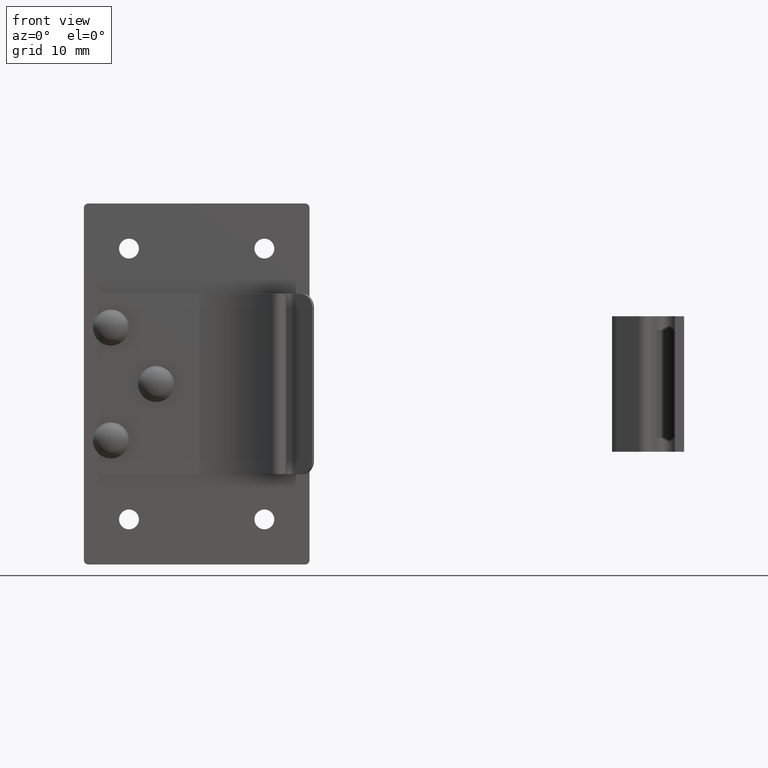
[diagram: clean part render]
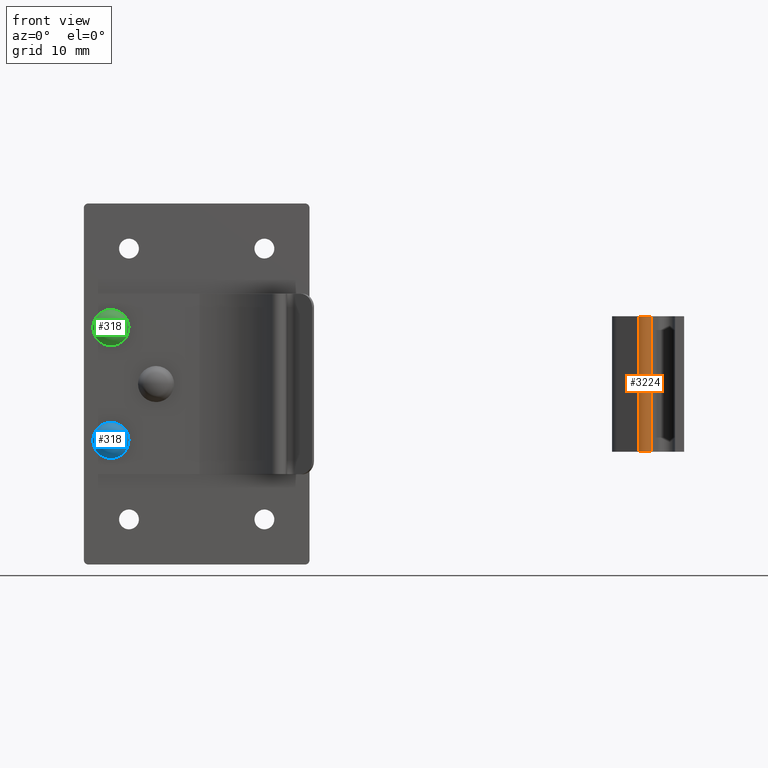
[diagram: same view with three faces highlighted in distinct colors, each labeled with its STEP entity id]
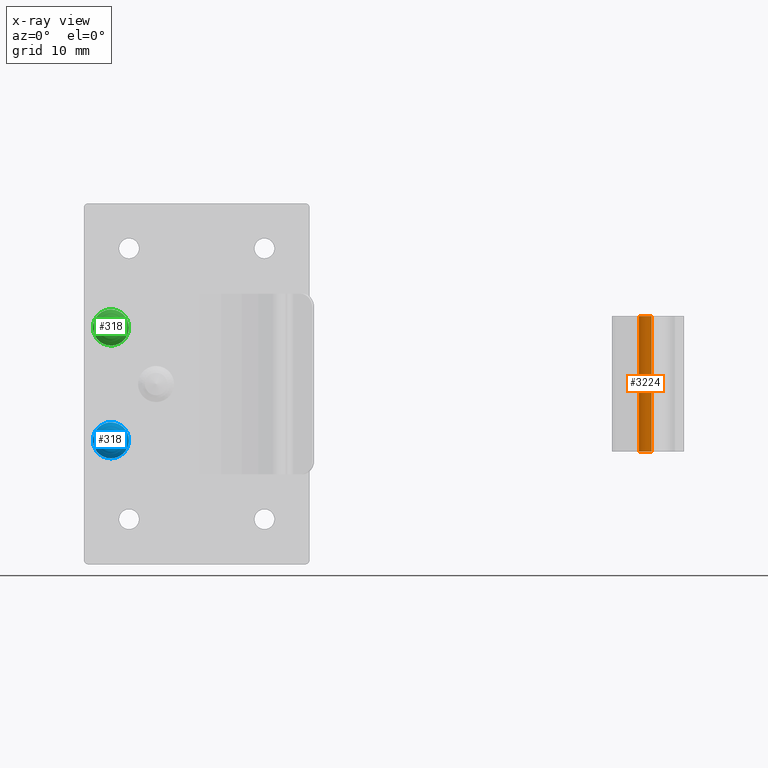
[diagram: x-ray of the same camera — body ghosted, the three highlighted faces saturated]
A machine part, front view with three faces highlighted in distinct colors.
The next image is the same camera in x-ray (body ghosted, the three faces saturated) — at least one of them is partly hidden behind the body in this view.
Their STEP definitions:

[orange] entity #3224 — the highlighted face is a freeform B-spline surface patch.
#2617=CARTESIAN_POINT('',(60.027406454846691,-5.014510366707651,7.500000000000170));
#2618=VERTEX_POINT('',#2617);
#2624=CARTESIAN_POINT('',(59.624202074853997,-3.609161000000085,7.500000000000170));
#2625=VERTEX_POINT('',#2624);
#2626=CARTESIAN_POINT('',(59.624202074853997,-3.609161000000085,7.500000000000170));
#2627=CARTESIAN_POINT('',(60.011300128724962,-3.806560703043738,7.500000000000170));
#2628=CARTESIAN_POINT('',(60.131133634316043,-4.224234591394641,7.500000000000170));
#2629=CARTESIAN_POINT('',(60.250967139907132,-4.641908479745542,7.500000000000170));
#2630=CARTESIAN_POINT('',(60.027406454846727,-5.014510366707670,7.500000000000170));
#2638=(BOUNDED_CURVE()B_SPLINE_CURVE(2,(#2626,#2627,#2628,#2629,#2630),.UNSPECIFIED.,.F.,.U.)B_SPLINE_CURVE_WITH_KNOTS((3,2,3),(0.0,0.500000000000000,1.0),.UNSPECIFIED.)CURVE()GEOMETRIC_REPRESENTATION_ITEM()RATIONAL_B_SPLINE_CURVE((1.0,0.917156593934854,1.0,0.917156593934854,1.0))REPRESENTATION_ITEM(''));
#2639=EDGE_CURVE('',#2625,#2618,#2638,.T.);
#2749=CARTESIAN_POINT('',(59.624202074853997,-3.609161000000085,-7.500000000000000));
#2750=VERTEX_POINT('',#2749);
#2756=CARTESIAN_POINT('',(60.027406454846691,-5.014510366707651,-7.500000000000000));
#2757=VERTEX_POINT('',#2756);
#2758=CARTESIAN_POINT('',(59.624202074853997,-3.609161000000085,-7.500000000000000));
#2759=CARTESIAN_POINT('',(60.011300128724962,-3.806560703043738,-7.500000000000000));
#2760=CARTESIAN_POINT('',(60.131133634316043,-4.224234591394641,-7.500000000000000));
#2761=CARTESIAN_POINT('',(60.250967139907132,-4.641908479745542,-7.500000000000000));
#2762=CARTESIAN_POINT('',(60.027406454846727,-5.014510366707670,-7.500000000000000));
#2770=(BOUNDED_CURVE()B_SPLINE_CURVE(2,(#2758,#2759,#2760,#2761,#2762),.UNSPECIFIED.,.F.,.U.)B_SPLINE_CURVE_WITH_KNOTS((3,2,3),(0.0,0.500000000000000,1.0),.UNSPECIFIED.)CURVE()GEOMETRIC_REPRESENTATION_ITEM()RATIONAL_B_SPLINE_CURVE((1.0,0.917156593934854,1.0,0.917156593934854,1.0))REPRESENTATION_ITEM(''));
#2771=EDGE_CURVE('',#2750,#2757,#2770,.T.);
#3192=CARTESIAN_POINT('',(60.027406454846691,-5.014510366707651,-7.500000000000000));
#3193=CARTESIAN_POINT('',(60.027406454846691,-5.014510366707651,7.500000000000170));
#3194=QUASI_UNIFORM_CURVE('',1,(#3192,#3193),.UNSPECIFIED.,.F.,.U.);
#3195=EDGE_CURVE('',#2757,#2618,#3194,.T.);
#3200=CARTESIAN_POINT('',(59.600726552620422,-3.597574373884221,-7.875000000000005));
#3201=CARTESIAN_POINT('',(59.600726552620422,-3.597574373884221,7.884375000000175));
#3202=CARTESIAN_POINT('',(60.638866161497809,-4.093168587744867,-7.875000000000006));
#3203=CARTESIAN_POINT('',(60.638866161497809,-4.093168587744867,7.884375000000175));
#3204=CARTESIAN_POINT('',(60.003613927861593,-5.052231709751140,-7.875000000000005));
#3205=CARTESIAN_POINT('',(60.003613927861593,-5.052231709751140,7.884375000000175));
#3213=(BOUNDED_SURFACE()B_SPLINE_SURFACE(1,2,((#3200,#3202,#3204),(#3201,#3203,#3205)),.UNSPECIFIED.,.F.,.F.,.U.)B_SPLINE_SURFACE_WITH_KNOTS((2,2),(3,3),(0.0,15.759375000000180),(0.0,1.0),.UNSPECIFIED.)GEOMETRIC_REPRESENTATION_ITEM()RATIONAL_B_SPLINE_SURFACE(((1.0,0.656059028990507,1.0),(1.0,0.656059028990507,1.0)))REPRESENTATION_ITEM('')SURFACE());
#3214=ORIENTED_EDGE('',*,*,#2639,.T.);
#3215=ORIENTED_EDGE('',*,*,#3195,.F.);
#3216=ORIENTED_EDGE('',*,*,#2771,.F.);
#3217=CARTESIAN_POINT('',(59.624202074853997,-3.609161000000085,-7.500000000000000));
#3218=CARTESIAN_POINT('',(59.624202074853997,-3.609161000000085,7.500000000000170));
#3219=QUASI_UNIFORM_CURVE('',1,(#3217,#3218),.UNSPECIFIED.,.F.,.U.);
#3220=EDGE_CURVE('',#2750,#2625,#3219,.T.);
#3221=ORIENTED_EDGE('',*,*,#3220,.T.);
#3222=EDGE_LOOP('',(#3214,#3215,#3216,#3221));
#3223=FACE_OUTER_BOUND('',#3222,.T.);
#3224=ADVANCED_FACE('',(#3223),#3213,.T.);

[blue] entity #318 — the highlighted face is a freeform B-spline surface patch.
#247=CARTESIAN_POINT('',(8.0,-1.200012000000100,1.999992733268745));
#248=VERTEX_POINT('',#247);
#249=CARTESIAN_POINT('',(8.0,-1.200012000000100,-1.999992733268745));
#250=VERTEX_POINT('',#249);
#251=CARTESIAN_POINT('',(8.0,-1.200012000000100,1.999992733268745));
#252=CARTESIAN_POINT('',(9.999992733268746,-1.200012000000100,1.999992733268744));
#253=CARTESIAN_POINT('',(9.999992733268746,-1.200012000000100,0.0));
#254=CARTESIAN_POINT('',(9.999992733268746,-1.200012000000100,-1.999992733268744));
#255=CARTESIAN_POINT('',(8.0,-1.200012000000100,-1.999992733268745));
#263=(BOUNDED_CURVE()B_SPLINE_CURVE(2,(#251,#252,#253,#254,#255),.UNSPECIFIED.,.F.,.U.)B_SPLINE_CURVE_WITH_KNOTS((3,2,3),(0.0,0.250000000000000,0.500000000000000),.UNSPECIFIED.)CURVE()GEOMETRIC_REPRESENTATION_ITEM()RATIONAL_B_SPLINE_CURVE((1.0,0.707106781186547,1.0,0.707106781186547,1.0))REPRESENTATION_ITEM(''));
#264=EDGE_CURVE('',#248,#250,#263,.T.);
#266=CARTESIAN_POINT('',(8.0,-1.200012000000100,-1.999992733268745));
#267=CARTESIAN_POINT('',(6.000007266731257,-1.200012000000100,-1.999992733268744));
#268=CARTESIAN_POINT('',(6.000007266731255,-1.200012000000100,0.0));
#269=CARTESIAN_POINT('',(6.000007266731257,-1.200012000000100,1.999992733268744));
#270=CARTESIAN_POINT('',(8.0,-1.200012000000100,1.999992733268745));
#278=(BOUNDED_CURVE()B_SPLINE_CURVE(2,(#266,#267,#268,#269,#270),.UNSPECIFIED.,.F.,.U.)B_SPLINE_CURVE_WITH_KNOTS((3,2,3),(0.500000000000000,0.750000000000000,1.0),.UNSPECIFIED.)CURVE()GEOMETRIC_REPRESENTATION_ITEM()RATIONAL_B_SPLINE_CURVE((1.0,0.707106781186547,1.0,0.707106781186547,1.0))REPRESENTATION_ITEM(''));
#279=EDGE_CURVE('',#250,#248,#278,.T.);
#290=CARTESIAN_POINT('',(6.402056604576426,-0.309209079740963,-1.597943395423572));
#291=CARTESIAN_POINT('',(6.961562974107903,-1.041281142857238,-2.076874051784199));
#292=CARTESIAN_POINT('',(9.038437025892099,-1.041281142857238,-2.076874051784199));
#293=CARTESIAN_POINT('',(9.597943395423574,-0.309209079740963,-1.597943395423572));
#294=CARTESIAN_POINT('',(5.923125948215803,-1.041281142857238,-1.038437025892100));
#295=CARTESIAN_POINT('',(6.517118233634124,-2.399997999999997,-1.482881766365876));
#296=CARTESIAN_POINT('',(9.482881766365876,-2.399997999999997,-1.482881766365876));
#297=CARTESIAN_POINT('',(10.076874051784202,-1.041281142857238,-1.038437025892100));
#298=CARTESIAN_POINT('',(5.923125948215803,-1.041281142857238,1.038437025892100));
#299=CARTESIAN_POINT('',(6.517118233634124,-2.399997999999997,1.482881766365876));
#300=CARTESIAN_POINT('',(9.482881766365876,-2.399997999999997,1.482881766365876));
#301=CARTESIAN_POINT('',(10.076874051784202,-1.041281142857238,1.038437025892100));
#302=CARTESIAN_POINT('',(6.402056604576426,-0.309209079740963,1.597943395423572));
#303=CARTESIAN_POINT('',(6.961562974107903,-1.041281142857238,2.076874051784199));
#304=CARTESIAN_POINT('',(9.038437025892099,-1.041281142857238,2.076874051784199));
#305=CARTESIAN_POINT('',(9.597943395423574,-0.309209079740963,1.597943395423572));
#313=(BOUNDED_SURFACE()B_SPLINE_SURFACE(2,2,((#290,#294,#298,#302),(#291,#295,#299,#303),(#292,#296,#300,#304),(#293,#297,#301,#305)),.UNSPECIFIED.,.F.,.F.,.U.)B_SPLINE_SURFACE_WITH_KNOTS((3,1,3),(3,1,3),(0.0,2.442974424246543,4.885948848493086),(0.0,2.442974424246541,4.885948848493083),.UNSPECIFIED.)GEOMETRIC_REPRESENTATION_ITEM()RATIONAL_B_SPLINE_SURFACE(((1.855987853653357,1.427993926826678,1.427993926826678,1.855987853653357),(1.427993926826678,1.0,1.0,1.427993926826678),(1.427993926826678,1.0,1.0,1.427993926826678),(1.855987853653357,1.427993926826678,1.427993926826678,1.855987853653357)))REPRESENTATION_ITEM('')SURFACE());
#314=ORIENTED_EDGE('',*,*,#279,.F.);
#315=ORIENTED_EDGE('',*,*,#264,.F.);
#316=EDGE_LOOP('',(#314,#315));
#317=FACE_OUTER_BOUND('',#316,.T.);
#318=ADVANCED_FACE('',(#317),#313,.T.);

[green] entity #318 — the highlighted face is a freeform B-spline surface patch.
#247=CARTESIAN_POINT('',(8.0,-1.200012000000100,1.999992733268745));
#248=VERTEX_POINT('',#247);
#249=CARTESIAN_POINT('',(8.0,-1.200012000000100,-1.999992733268745));
#250=VERTEX_POINT('',#249);
#251=CARTESIAN_POINT('',(8.0,-1.200012000000100,1.999992733268745));
#252=CARTESIAN_POINT('',(9.999992733268746,-1.200012000000100,1.999992733268744));
#253=CARTESIAN_POINT('',(9.999992733268746,-1.200012000000100,0.0));
#254=CARTESIAN_POINT('',(9.999992733268746,-1.200012000000100,-1.999992733268744));
#255=CARTESIAN_POINT('',(8.0,-1.200012000000100,-1.999992733268745));
#263=(BOUNDED_CURVE()B_SPLINE_CURVE(2,(#251,#252,#253,#254,#255),.UNSPECIFIED.,.F.,.U.)B_SPLINE_CURVE_WITH_KNOTS((3,2,3),(0.0,0.250000000000000,0.500000000000000),.UNSPECIFIED.)CURVE()GEOMETRIC_REPRESENTATION_ITEM()RATIONAL_B_SPLINE_CURVE((1.0,0.707106781186547,1.0,0.707106781186547,1.0))REPRESENTATION_ITEM(''));
#264=EDGE_CURVE('',#248,#250,#263,.T.);
#266=CARTESIAN_POINT('',(8.0,-1.200012000000100,-1.999992733268745));
#267=CARTESIAN_POINT('',(6.000007266731257,-1.200012000000100,-1.999992733268744));
#268=CARTESIAN_POINT('',(6.000007266731255,-1.200012000000100,0.0));
#269=CARTESIAN_POINT('',(6.000007266731257,-1.200012000000100,1.999992733268744));
#270=CARTESIAN_POINT('',(8.0,-1.200012000000100,1.999992733268745));
#278=(BOUNDED_CURVE()B_SPLINE_CURVE(2,(#266,#267,#268,#269,#270),.UNSPECIFIED.,.F.,.U.)B_SPLINE_CURVE_WITH_KNOTS((3,2,3),(0.500000000000000,0.750000000000000,1.0),.UNSPECIFIED.)CURVE()GEOMETRIC_REPRESENTATION_ITEM()RATIONAL_B_SPLINE_CURVE((1.0,0.707106781186547,1.0,0.707106781186547,1.0))REPRESENTATION_ITEM(''));
#279=EDGE_CURVE('',#250,#248,#278,.T.);
#290=CARTESIAN_POINT('',(6.402056604576426,-0.309209079740963,-1.597943395423572));
#291=CARTESIAN_POINT('',(6.961562974107903,-1.041281142857238,-2.076874051784199));
#292=CARTESIAN_POINT('',(9.038437025892099,-1.041281142857238,-2.076874051784199));
#293=CARTESIAN_POINT('',(9.597943395423574,-0.309209079740963,-1.597943395423572));
#294=CARTESIAN_POINT('',(5.923125948215803,-1.041281142857238,-1.038437025892100));
#295=CARTESIAN_POINT('',(6.517118233634124,-2.399997999999997,-1.482881766365876));
#296=CARTESIAN_POINT('',(9.482881766365876,-2.399997999999997,-1.482881766365876));
#297=CARTESIAN_POINT('',(10.076874051784202,-1.041281142857238,-1.038437025892100));
#298=CARTESIAN_POINT('',(5.923125948215803,-1.041281142857238,1.038437025892100));
#299=CARTESIAN_POINT('',(6.517118233634124,-2.399997999999997,1.482881766365876));
#300=CARTESIAN_POINT('',(9.482881766365876,-2.399997999999997,1.482881766365876));
#301=CARTESIAN_POINT('',(10.076874051784202,-1.041281142857238,1.038437025892100));
#302=CARTESIAN_POINT('',(6.402056604576426,-0.309209079740963,1.597943395423572));
#303=CARTESIAN_POINT('',(6.961562974107903,-1.041281142857238,2.076874051784199));
#304=CARTESIAN_POINT('',(9.038437025892099,-1.041281142857238,2.076874051784199));
#305=CARTESIAN_POINT('',(9.597943395423574,-0.309209079740963,1.597943395423572));
#313=(BOUNDED_SURFACE()B_SPLINE_SURFACE(2,2,((#290,#294,#298,#302),(#291,#295,#299,#303),(#292,#296,#300,#304),(#293,#297,#301,#305)),.UNSPECIFIED.,.F.,.F.,.U.)B_SPLINE_SURFACE_WITH_KNOTS((3,1,3),(3,1,3),(0.0,2.442974424246543,4.885948848493086),(0.0,2.442974424246541,4.885948848493083),.UNSPECIFIED.)GEOMETRIC_REPRESENTATION_ITEM()RATIONAL_B_SPLINE_SURFACE(((1.855987853653357,1.427993926826678,1.427993926826678,1.855987853653357),(1.427993926826678,1.0,1.0,1.427993926826678),(1.427993926826678,1.0,1.0,1.427993926826678),(1.855987853653357,1.427993926826678,1.427993926826678,1.855987853653357)))REPRESENTATION_ITEM('')SURFACE());
#314=ORIENTED_EDGE('',*,*,#279,.F.);
#315=ORIENTED_EDGE('',*,*,#264,.F.);
#316=EDGE_LOOP('',(#314,#315));
#317=FACE_OUTER_BOUND('',#316,.T.);
#318=ADVANCED_FACE('',(#317),#313,.T.);